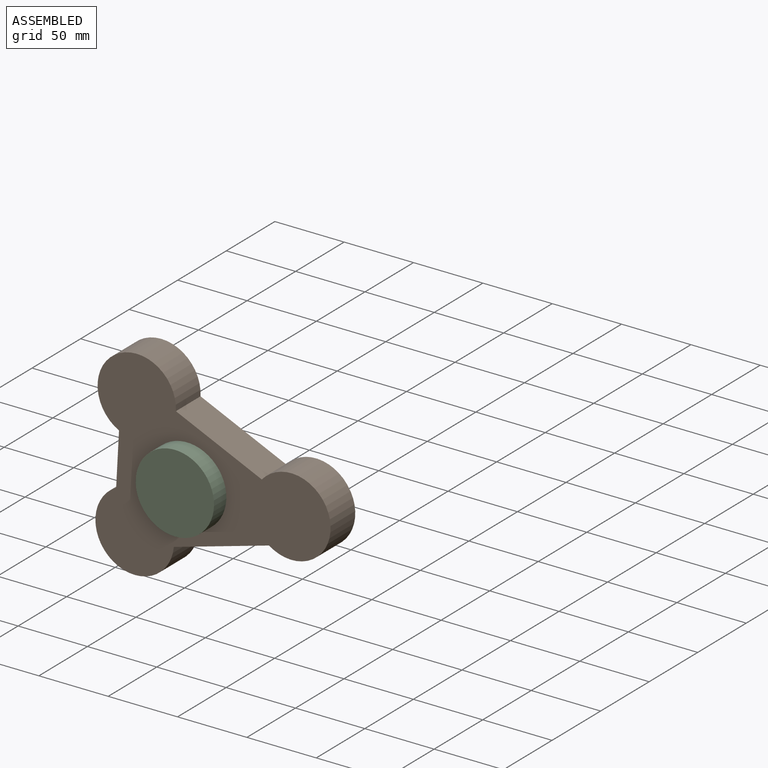
[diagram: assembled view]
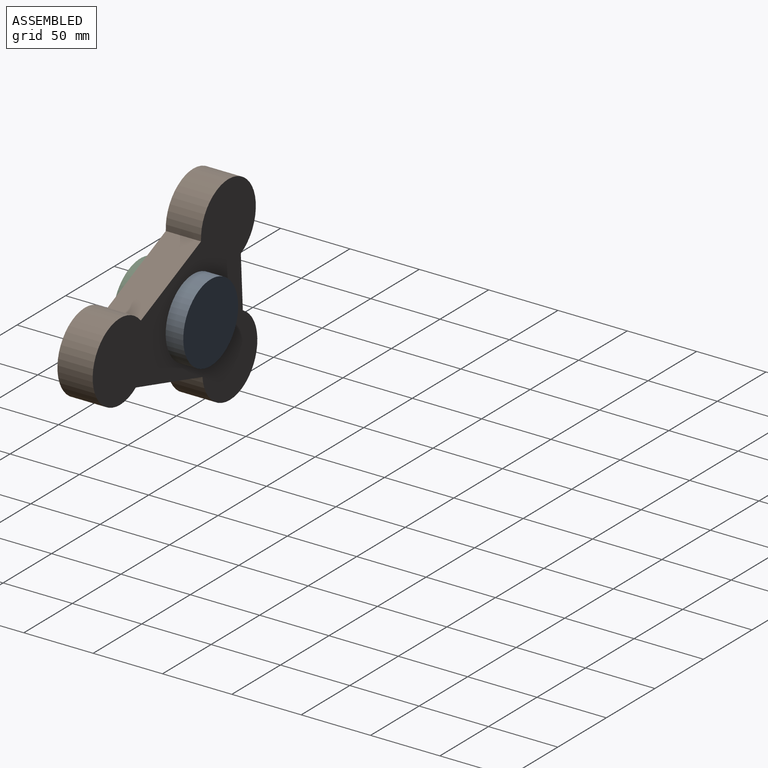
[diagram: assembled view, second angle]
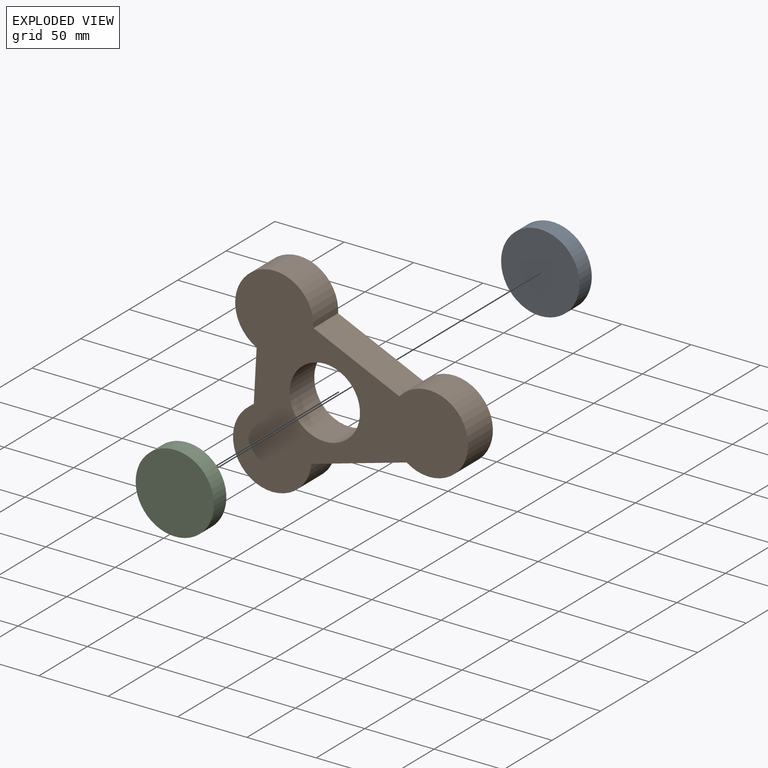
[diagram: exploded view]
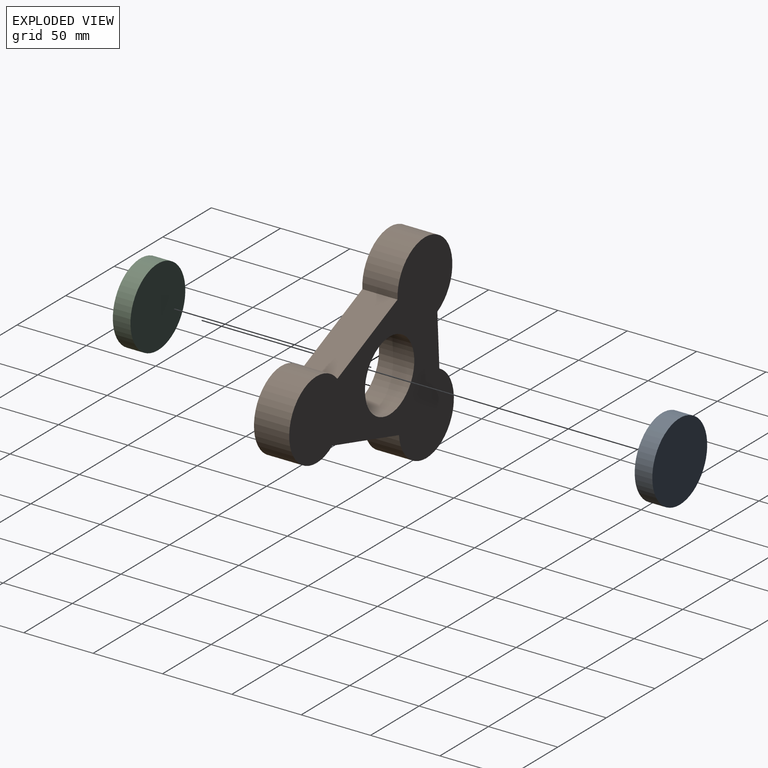
[diagram: exploded view, second angle]
ASSEMBLY  parts=3 mates=2
PART A: 3 faces, bbox 56.5x12.7x56.5 mm
  f0: cylinder r=28.26mm len=56.51mm, axis (0,1,0), area 2254.8mm2, adj f1,f2
  f1: plane 56.51x56.51mm, normal (0,-1,0), area 2508.4mm2, adj f0
  f2: plane 56.51x56.51mm, normal (0,1,0), area 2508.4mm2, adj f0
PART B: 9 faces, bbox 169.6x25.4x144.5 mm
  f0: plane 37.76x25.4mm, normal (-1,0,0.05), area 960.7mm2, adj f1,f5,f6,f7
  f1: cylinder r=28.34mm len=56.56mm, axis (0,1,0), area 2973.2mm2, adj f0,f2,f6,f7
  f2: plane 68.63x25.4mm, normal (0.27,0,-0.96), area 1810.8mm2, adj f1,f3,f6,f7
  f3: cylinder r=28.25mm len=56.5mm, axis (0,1,0), area 3307.1mm2, adj f2,f4,f6,f7
  f4: plane 61.95x27.94mm, normal (0.41,0,0.91), area 1726.3mm2, adj f3,f5,f6,f7
  f5: cylinder r=28.25mm len=56.49mm, axis (0,1,0), area 3085.3mm2, adj f0,f4,f6,f7
  f6: plane 169.6x144.52mm, normal (0,-1,0), area 11154.5mm2, adj f0,f1,f2,f3,f4,f5,f8
  f7: plane 169.6x144.52mm, normal (0,1,0), area 11154.5mm2, adj f0,f1,f2,f3,f4,f5,f8
  f8: cylinder r=25.4mm len=50.8mm, axis (0,1,0), area 4053.7mm2, adj f6,f7
PART C: same geometry as A
PLACE A t=(7.57,30.02,13.01)mm
PLACE B t=(25.87,17.32,13.01)mm
PLACE C t=(7.57,-8.08,13.01)mm
MATE fastened A.f0 <-> B.f8  axis (0,-1,0) through (7.57,17.32,13.01)mm
MATE fastened C.f0 <-> B.f8  axis (0,1,0) through (7.57,-8.08,13.01)mm
